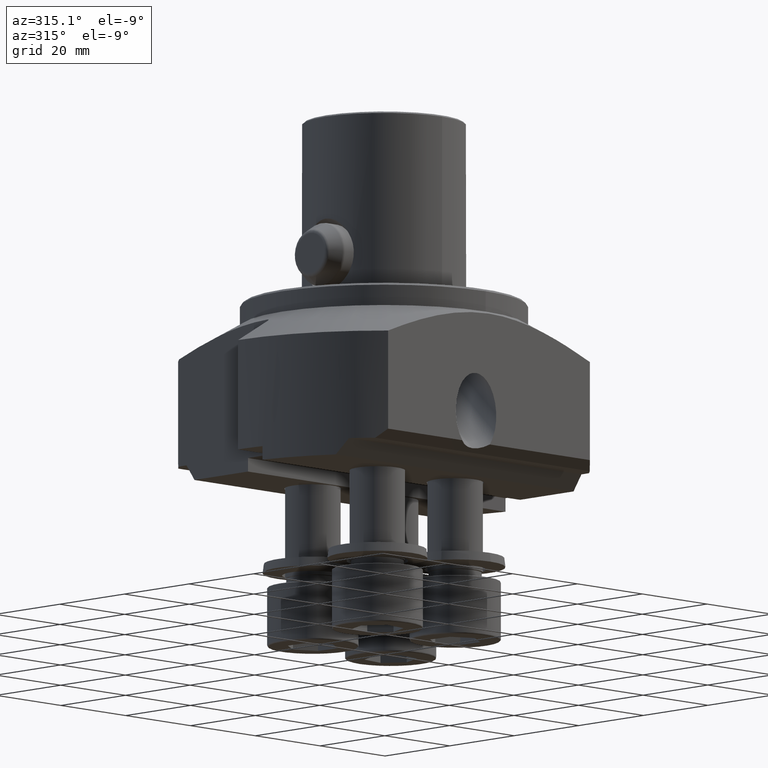
[diagram: clean part render]
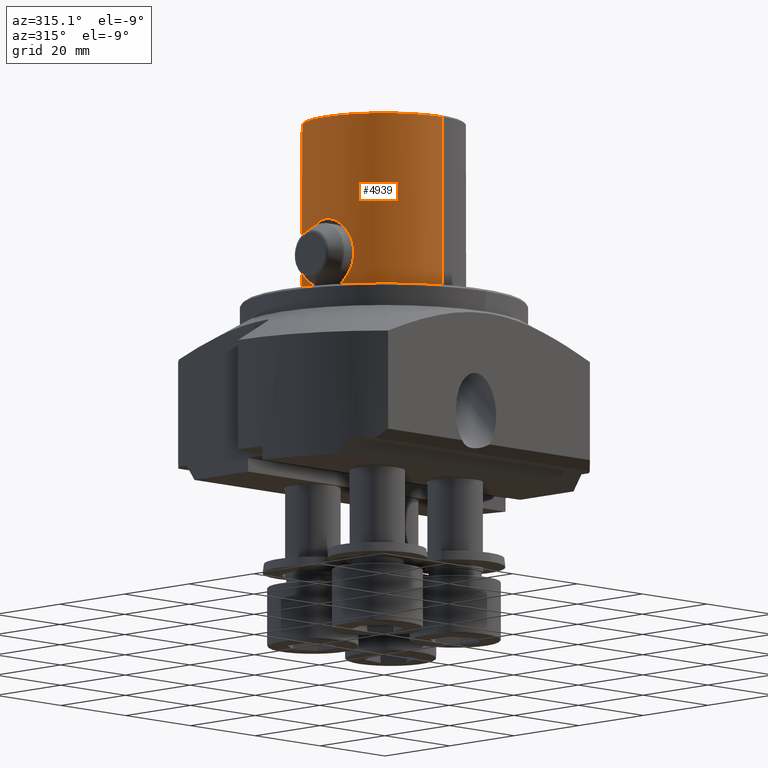
[diagram: same view with one face highlighted and labeled with its STEP entity id]
A machine part, auxiliary view. The second image highlights one B-rep face of the part: STEP entity #4939.
In plain terms, the highlighted cylindrical surface (partial cylindrical patch) has radius 18 mm, axis along (-0, -0, 1).
Its self-contained STEP definition (entity closure, byte-faithful):
#2201=EDGE_CURVE('NONE',#3265,#3257,#6323,.T.);
#2525=EDGE_CURVE('NONE',#4491,#3867,#6696,.T.);
#2581=VERTEX_POINT('NONE',#6761);
#2677=EDGE_CURVE('NONE',#3475,#2581,#6874,.T.);
#2807=EDGE_CURVE('NONE',#4651,#3475,#7017,.T.);
#3051=EDGE_CURVE('NONE',#4147,#5657,#7290,.T.);
#3057=EDGE_CURVE('NONE',#3257,#3277,#7297,.T.);
#3257=VERTEX_POINT('NONE',#7514);
#3265=VERTEX_POINT('NONE',#7524);
#3277=VERTEX_POINT('NONE',#7537);
#3475=VERTEX_POINT('NONE',#7757);
#3497=EDGE_CURVE('NONE',#3867,#4147,#7782,.T.);
#3847=EDGE_CURVE('NONE',#5469,#2581,#8176,.T.);
#3867=VERTEX_POINT('NONE',#8199);
#4147=VERTEX_POINT('NONE',#8514);
#4491=VERTEX_POINT('NONE',#8907);
#4651=VERTEX_POINT('NONE',#9084);
#4939=ADVANCED_FACE('NONE',(#9406),#9407,.T.);
#5121=EDGE_CURVE('NONE',#5657,#3265,#9610,.T.);
#5251=EDGE_CURVE('NONE',#5469,#3277,#9756,.T.);
#5469=VERTEX_POINT('NONE',#10003);
#5657=VERTEX_POINT('NONE',#10213);
#6083=EDGE_CURVE('NONE',#4651,#4491,#10695,.T.);
#6323=CIRCLE('',#10972,18.0);
#6696=LINE('',#11493,#11494);
#6761=CARTESIAN_POINT('',(-17.8043430932571,-2.64676538771193,1.4854414910644));
#6874=B_SPLINE_CURVE_WITH_KNOTS('',3,(#11754,#11755,#11756,#11757,#11758,#11759,#11760,#11761,#11762,#11763,#11764,#11765,#11766,#11767,#11768,#11769,#11770,#11771,#11772,#11773,#11774,#11775,#11776,#11777,#11778,#11779,#11780,#11781,#11782,#11783,#11784,#11785,#11786,#11787,#11788,#11789,#11790,#11791,#11792,#11793),.UNSPECIFIED.,.F.,.F.,(4,2,2,2,2,2,2,2,2,2,2,2,2,2,2,2,2,2,2,4),(0.042633243091867,0.0439735755488186,0.0453139080057701,0.0466542404627216,0.0479945729196731,0.0486647391481488,0.0493349053766246,0.0506752378335761,0.0513454040620518,0.0520155702905276,0.0533559027474791,0.0540260689759548,0.0546962352044306,0.0560365676613821,0.0573769001183336,0.0587172325752851,0.0600575650322366,0.0613978974891881,0.0627382299461395,0.064078562403091),.UNSPECIFIED.);
#7017=B_SPLINE_CURVE_WITH_KNOTS('',3,(#11985,#11986,#11987,#11988,#11989,#11990,#11991,#11992,#11993,#11994,#11995,#11996,#11997,#11998,#11999,#12000,#12001,#12002,#12003,#12004,#12005,#12006,#12007,#12008,#12009,#12010,#12011,#12012,#12013,#12014,#12015,#12016,#12017,#12018,#12019,#12020,#12021,#12022),.UNSPECIFIED.,.F.,.F.,(4,2,2,2,2,2,2,2,2,2,2,2,2,2,2,2,2,2,4),(0.0212047663511858,0.0225440461474784,0.023883325943771,0.0252226057400636,0.0265618855363561,0.0279011653326487,0.0292404451289413,0.0305797249252339,0.0312493648233801,0.0319190047215264,0.033258284517819,0.0339279244159653,0.0345975643141116,0.0359368441104042,0.0372761239066967,0.0386154037029893,0.0399546834992819,0.0412939632955745,0.042633243091867),.UNSPECIFIED.);
#7290=B_SPLINE_CURVE_WITH_KNOTS('',3,(#12427,#12428,#12429,#12430,#12431,#12432,#12433,#12434,#12435,#12436,#12437,#12438,#12439,#12440,#12441,#12442,#12443,#12444,#12445,#12446,#12447,#12448,#12449,#12450),.UNSPECIFIED.,.F.,.F.,(4,2,2,2,2,2,2,2,2,2,2,4),(0.0226743596870395,0.0232432776296822,0.023812195572325,0.0249500314576106,0.0260878673428961,0.0272257032281817,0.0277946211708245,0.0283635391134672,0.0295013749987528,0.0306392108840384,0.0312081288266811,0.0317770467693239),.UNSPECIFIED.);
#7297=CIRCLE('',#12458,18.0);
#7514=CARTESIAN_POINT('',(-18.0,4.28626860567161E-014,39.6425));
#7524=CARTESIAN_POINT('',(0.0,18.0,39.6425));
#7537=CARTESIAN_POINT('',(-2.20429143688028E-015,-18.0,39.6425));
#7757=CARTESIAN_POINT('',(-18.0,4.28626855483155E-014,17.0800170173089));
#7782=B_SPLINE_CURVE_WITH_KNOTS('',3,(#13123,#13124,#13125,#13126,#13127,#13128,#13129,#13130,#13131,#13132,#13133,#13134,#13135,#13136,#13137,#13138,#13139,#13140,#13141,#13142),.UNSPECIFIED.,.F.,.F.,(4,2,2,2,2,2,2,2,2,4),(0.0135785668381912,0.0147155409442972,0.0158525150504032,0.0169894891565093,0.0181264632626153,0.0192634373687214,0.0198319244217744,0.0204004114748274,0.0215373855809334,0.0226743596870395),.UNSPECIFIED.);
#8176=CIRCLE('',#13669,18.0);
#8199=CARTESIAN_POINT('',(9.80569882407822E-023,18.0,9.55879787772688));
#8514=CARTESIAN_POINT('',(-5.69356628233995,17.0758104635944,15.5));
#8907=CARTESIAN_POINT('',(0.0,18.0,1.4854414910644));
#9084=CARTESIAN_POINT('',(-17.8043430932588,2.6467653877001,1.4854414910644));
#9406=FACE_OUTER_BOUND('',#15601,.T.);
#9407=CYLINDRICAL_SURFACE('',#15602,18.0);
#9610=LINE('',#15928,#15929);
#9756=LINE('',#16190,#16191);
#10003=CARTESIAN_POINT('',(-2.20429143688028E-015,-18.0,1.4854414910644));
#10213=CARTESIAN_POINT('',(-6.37674826686836E-016,18.0,21.4412021222732));
#10695=CIRCLE('',#17652,18.0);
#10972=AXIS2_PLACEMENT_3D('',#17935,#17936,#17937);
#11493=CARTESIAN_POINT('',(0.0,18.0,43.0421655114472));
#11494=VECTOR('',#18425,1000.0);
#11754=CARTESIAN_POINT('',(-18.0,4.28626855483155E-014,17.0800170173089));
#11755=CARTESIAN_POINT('',(-18.0,-0.448110895913605,17.0800170173088));
#11756=CARTESIAN_POINT('',(-17.9832887214536,-0.893472621439464,17.0334842753062));
#11757=CARTESIAN_POINT('',(-17.9174048817351,-1.77864242285983,16.845959388721));
#11758=CARTESIAN_POINT('',(-17.8691149954429,-2.20561938086423,16.7073652032162));
#11759=CARTESIAN_POINT('',(-17.7493705952654,-3.02156764702272,16.3509439530694));
#11760=CARTESIAN_POINT('',(-17.6769433245752,-3.41536472066966,16.1300047783312));
#11761=CARTESIAN_POINT('',(-17.5203353885603,-4.14450109757503,15.626126100373));
#11762=CARTESIAN_POINT('',(-17.435985076103,-4.48242229213012,15.3428751149379));
#11763=CARTESIAN_POINT('',(-17.3060628048544,-4.95243490509493,14.8732083222307));
#11764=CARTESIAN_POINT('',(-17.262129070979,-5.10303280103272,14.7088478214983));
#11765=CARTESIAN_POINT('',(-17.1756020796889,-5.38708984812231,14.3711183966968));
#11766=CARTESIAN_POINT('',(-17.1327980727759,-5.52132890179167,14.1970087804982));
#11767=CARTESIAN_POINT('',(-17.0070546562547,-5.90181857534328,13.659412914132));
#11768=CARTESIAN_POINT('',(-16.9267690822343,-6.1260149082967,13.2807772754839));
#11769=CARTESIAN_POINT('',(-16.816810124424,-6.41917360678625,12.6820245691146));
#11770=CARTESIAN_POINT('',(-16.7819246102275,-6.50958705175626,12.4771924399865));
#11771=CARTESIAN_POINT('',(-16.7175876055526,-6.67307888897058,12.0641425176502));
#11772=CARTESIAN_POINT('',(-16.6879704292968,-6.74660310224271,11.8550688884825));
#11773=CARTESIAN_POINT('',(-16.607604794098,-6.94316245497329,11.2202881683966));
#11774=CARTESIAN_POINT('',(-16.5653413496313,-7.04235562423895,10.7870684930256));
#11775=CARTESIAN_POINT('',(-16.5221835334899,-7.1427430289552,10.1216499566787));
#11776=CARTESIAN_POINT('',(-16.5111690226514,-7.16809813103287,9.89642095727582));
#11777=CARTESIAN_POINT('',(-16.4965943418377,-7.20157680175151,9.44838388672081));
#11778=CARTESIAN_POINT('',(-16.4929596269401,-7.20987397575238,9.22482020790925));
#11779=CARTESIAN_POINT('',(-16.4929044670941,-7.21000015587622,8.55546611485903));
#11780=CARTESIAN_POINT('',(-16.5073478962955,-7.17723172412564,8.11100530239625));
#11781=CARTESIAN_POINT('',(-16.5642680753572,-7.04487139122008,7.22566695209379));
#11782=CARTESIAN_POINT('',(-16.6071041688085,-6.94436023855215,6.78426816397701));
#11783=CARTESIAN_POINT('',(-16.7142933059099,-6.68224866945671,5.93641902948921));
#11784=CARTESIAN_POINT('',(-16.778824948709,-6.52026975390141,5.52581495108641));
#11785=CARTESIAN_POINT('',(-16.9243920286593,-6.13252303569391,4.7311903113716));
#11786=CARTESIAN_POINT('',(-17.005964986575,-5.90494594481897,4.3455655917672));
#11787=CARTESIAN_POINT('',(-17.1735602731671,-5.39815332125205,3.62840340116091));
#11788=CARTESIAN_POINT('',(-17.2601455517331,-5.11767015231755,3.29336686495462));
#11789=CARTESIAN_POINT('',(-17.43174496603,-4.49860419399422,2.67189058564161));
#11790=CARTESIAN_POINT('',(-17.5175744284358,-4.15589850395825,2.38307811208146));
#11791=CARTESIAN_POINT('',(-17.6735619037234,-3.43250868407459,1.88056621700825));
#11792=CARTESIAN_POINT('',(-17.7443100716292,-3.05059737030849,1.66442569439597));
#11793=CARTESIAN_POINT('',(-17.8043430932571,-2.64676538771193,1.4854414910644));
#11985=CARTESIAN_POINT('',(-17.8043430932588,2.6467653877001,1.4854414910644));
#11986=CARTESIAN_POINT('',(-17.7435890078281,3.05544784454008,1.66657549506362));
#11987=CARTESIAN_POINT('',(-17.6721105377102,3.44012382970093,1.88504445392337));
#11988=CARTESIAN_POINT('',(-17.515164630157,4.16616739932772,2.39104348515688));
#11989=CARTESIAN_POINT('',(-17.429407920361,4.50767813494014,2.67992048191539));
#11990=CARTESIAN_POINT('',(-17.257264440143,5.12740155103273,3.3042487580062));
#11991=CARTESIAN_POINT('',(-17.1701524901555,5.40906213582045,3.64183625304667));
#11992=CARTESIAN_POINT('',(-17.0011818703162,5.91877561128912,4.36723967481192));
#11993=CARTESIAN_POINT('',(-16.9205248865956,6.14313440547083,4.75049925225551));
#11994=CARTESIAN_POINT('',(-16.7758072970753,6.52798225280776,5.54417642087421));
#11995=CARTESIAN_POINT('',(-16.711275772908,6.68979217727605,5.95649871434817));
#11996=CARTESIAN_POINT('',(-16.603942876053,6.95191616046224,6.81328549163413));
#11997=CARTESIAN_POINT('',(-16.5621134354594,7.0499186684816,7.25156126211688));
#11998=CARTESIAN_POINT('',(-16.5064699403145,7.17923427607178,8.13270300695628));
#11999=CARTESIAN_POINT('',(-16.4923550952707,7.21125687317352,8.57786597181488));
#12000=CARTESIAN_POINT('',(-16.4932621974979,7.20918182975253,9.25271364083525));
#12001=CARTESIAN_POINT('',(-16.4972944242252,7.19997514152039,9.47957511056373));
#12002=CARTESIAN_POINT('',(-16.5125486217882,7.16492172819513,9.92771141470684));
#12003=CARTESIAN_POINT('',(-16.5237478082428,7.13912601404419,10.1498493587738));
#12004=CARTESIAN_POINT('',(-16.5674491551405,7.03740548718627,10.8106167976696));
#12005=CARTESIAN_POINT('',(-16.6100643690542,6.93732356008738,11.2436339943433));
#12006=CARTESIAN_POINT('',(-16.691636226677,6.73754066456386,11.881881789706));
#12007=CARTESIAN_POINT('',(-16.7219216670928,6.66222583919377,12.0936694234613));
#12008=CARTESIAN_POINT('',(-16.7869697575436,6.49658092631241,12.5076152345835));
#12009=CARTESIAN_POINT('',(-16.8217110949867,6.40631756257512,12.7098918330075));
#12010=CARTESIAN_POINT('',(-16.9313284510368,6.11339450601213,13.3029943991879));
#12011=CARTESIAN_POINT('',(-17.0116001331486,5.88879386054897,13.6802023429086));
#12012=CARTESIAN_POINT('',(-17.1800524796219,5.3775672027059,14.397599314082));
#12013=CARTESIAN_POINT('',(-17.2686826323232,5.08888879135794,14.7388834248617));
#12014=CARTESIAN_POINT('',(-17.4400332898503,4.46647823633181,15.3566572794826));
#12015=CARTESIAN_POINT('',(-17.523548609744,4.13071246400342,15.6367188721776));
#12016=CARTESIAN_POINT('',(-17.6788203311313,3.40541525190573,16.1357810917022));
#12017=CARTESIAN_POINT('',(-17.751145936804,3.01091614713187,16.3563074402659));
#12018=CARTESIAN_POINT('',(-17.87003642965,2.19786171488395,16.7100268985407));
#12019=CARTESIAN_POINT('',(-17.9174317337588,1.77686642710376,16.846026893196));
#12020=CARTESIAN_POINT('',(-17.9826227380614,0.903821715955788,17.0315975269336));
#12021=CARTESIAN_POINT('',(-18.0,0.447758961803224,17.0800170173089));
#12022=CARTESIAN_POINT('',(-18.0,4.28626855483155E-014,17.0800170173089));
#12427=CARTESIAN_POINT('',(-5.69356628233995,17.0758104635944,15.5));
#12428=CARTESIAN_POINT('',(-5.69356628233995,17.0758104635944,15.6906038472208));
#12429=CARTESIAN_POINT('',(-5.68480074143355,17.0787407997958,15.8812798160531));
#12430=CARTESIAN_POINT('',(-5.64945092402843,17.0904666710247,16.262778140799));
#12431=CARTESIAN_POINT('',(-5.62263936104431,17.09933683139,16.4546543873164));
#12432=CARTESIAN_POINT('',(-5.51618361750927,17.1340973537767,17.0212419518763));
#12433=CARTESIAN_POINT('',(-5.41133762275862,17.1679428870532,17.3867820959143));
#12434=CARTESIAN_POINT('',(-5.13529852839445,17.2525229130372,18.0944038696257));
#12435=CARTESIAN_POINT('',(-4.96175374691931,17.3038931035756,18.4394896542979));
#12436=CARTESIAN_POINT('',(-4.5584697828586,17.4144787468303,19.0807636986275));
#12437=CARTESIAN_POINT('',(-4.32858804371673,17.4738114345249,19.3793031959295));
#12438=CARTESIAN_POINT('',(-3.93990643248296,17.5640208218011,19.7937592237643));
#12439=CARTESIAN_POINT('',(-3.8021400896711,17.5944612687744,19.9269960050274));
#12440=CARTESIAN_POINT('',(-3.51609901298778,17.6538489947873,20.177337807016));
#12441=CARTESIAN_POINT('',(-3.36782706013702,17.682818828873,20.2946310851554));
#12442=CARTESIAN_POINT('',(-2.90730360069878,17.7663994422141,20.623247076025));
#12443=CARTESIAN_POINT('',(-2.57952159423171,17.8177093706742,20.8115706827787));
#12444=CARTESIAN_POINT('',(-1.87870361330285,17.9051716441447,21.122625434186));
#12445=CARTESIAN_POINT('',(-1.51403479569283,17.9400813661716,21.2410447813167));
#12446=CARTESIAN_POINT('',(-0.956281197849006,17.9755453732981,21.3601812025418));
#12447=CARTESIAN_POINT('',(-0.768009354670208,17.9846203126379,21.390320131375));
#12448=CARTESIAN_POINT('',(-0.38659771470448,17.9968594028401,21.4308686845832));
#12449=CARTESIAN_POINT('',(-0.19229872112468,18.0,21.4412021222732));
#12450=CARTESIAN_POINT('',(-6.37674826686836E-016,18.0,21.4412021222732));
#12458=AXIS2_PLACEMENT_3D('',#19204,#19205,#19206);
#13123=CARTESIAN_POINT('',(9.80569882407822E-023,18.0,9.55879787772688));
#13124=CARTESIAN_POINT('',(-0.381607690426376,18.0,9.55879787772688));
#13125=CARTESIAN_POINT('',(-0.76973864978681,17.9874220056575,9.59991891644169));
#13126=CARTESIAN_POINT('',(-1.51615448353006,17.9399309803761,9.7594624020736));
#13127=CARTESIAN_POINT('',(-1.87795909018749,17.9052523427221,9.87709464928697));
#13128=CARTESIAN_POINT('',(-2.57904115400215,17.8177815265239,10.1881656277774));
#13129=CARTESIAN_POINT('',(-2.9091710783425,17.7661035213158,10.3778450306055));
#13130=CARTESIAN_POINT('',(-3.52428142695414,17.654380507874,10.8172525072349));
#13131=CARTESIAN_POINT('',(-3.81308264304391,17.5934908333522,11.0706912156702));
#13132=CARTESIAN_POINT('',(-4.33042381068864,17.4733496664421,11.6229728870322));
#13133=CARTESIAN_POINT('',(-4.56029711099003,17.4140025579032,11.921695321149));
#13134=CARTESIAN_POINT('',(-4.86302036795089,17.3309544344126,12.4037380809769));
#13135=CARTESIAN_POINT('',(-4.95727295766992,17.3041435496894,12.5710344625853));
#13136=CARTESIAN_POINT('',(-5.12834067633398,17.2542186456693,12.9116165772247));
#13137=CARTESIAN_POINT('',(-5.20538301807538,17.231052313294,13.0850568973416));
#13138=CARTESIAN_POINT('',(-5.41174701779101,17.1678099642559,13.6146705048781));
#13139=CARTESIAN_POINT('',(-5.5165472039621,17.1339802433938,13.9800512026963));
#13140=CARTESIAN_POINT('',(-5.65846437005843,17.0876374319954,14.7366615813683));
#13141=CARTESIAN_POINT('',(-5.69356628233995,17.0758104635944,15.1190810263295));
#13142=CARTESIAN_POINT('',(-5.69356628233995,17.0758104635944,15.5));
#13669=AXIS2_PLACEMENT_3D('',#20274,#20275,#20276);
#15601=EDGE_LOOP('',(#21840,#21841,#21842,#21843,#21844,#21845,#21846,#21847,#21848,#21849,#21850));
#15602=AXIS2_PLACEMENT_3D('',#21851,#21852,#21853);
#15928=CARTESIAN_POINT('',(0.0,18.0,43.0421655114472));
#15929=VECTOR('',#22106,1000.0);
#16190=CARTESIAN_POINT('',(-2.20429143688028E-015,-18.0,43.0421655114472));
#16191=VECTOR('',#22290,1000.0);
#17652=AXIS2_PLACEMENT_3D('',#23495,#23496,#23497);
#17935=CARTESIAN_POINT('',(0.0,0.0,39.6425));
#17936=DIRECTION('',(0.0,0.0,1.0));
#17937=DIRECTION('',(-8.88178419700125E-016,-1.0,0.0));
#18425=DIRECTION('',(0.0,0.0,1.0));
#19204=CARTESIAN_POINT('',(0.0,0.0,39.6425));
#19205=DIRECTION('',(0.0,0.0,1.0));
#19206=DIRECTION('',(8.88178419700125E-016,-1.0,-0.0));
#20274=CARTESIAN_POINT('',(0.0,0.0,1.4854414910644));
#20275=DIRECTION('',(0.0,0.0,-1.0));
#20276=DIRECTION('',(0.0,1.0,0.0));
#21840=ORIENTED_EDGE('',*,*,#3847,.F.);
#21841=ORIENTED_EDGE('',*,*,#5251,.T.);
#21842=ORIENTED_EDGE('',*,*,#3057,.F.);
#21843=ORIENTED_EDGE('',*,*,#2201,.F.);
#21844=ORIENTED_EDGE('',*,*,#5121,.F.);
#21845=ORIENTED_EDGE('',*,*,#3051,.F.);
#21846=ORIENTED_EDGE('',*,*,#3497,.F.);
#21847=ORIENTED_EDGE('',*,*,#2525,.F.);
#21848=ORIENTED_EDGE('',*,*,#6083,.F.);
#21849=ORIENTED_EDGE('',*,*,#2807,.T.);
#21850=ORIENTED_EDGE('',*,*,#2677,.T.);
#21851=CARTESIAN_POINT('',(0.0,0.0,43.0421655114472));
#21852=DIRECTION('',(-0.0,-0.0,1.0));
#21853=DIRECTION('',(0.0,1.0,0.0));
#22106=DIRECTION('',(0.0,0.0,1.0));
#22290=DIRECTION('',(0.0,0.0,1.0));
#23495=CARTESIAN_POINT('',(0.0,0.0,1.4854414910644));
#23496=DIRECTION('',(0.0,0.0,-1.0));
#23497=DIRECTION('',(1.77635683940025E-015,1.0,0.0));